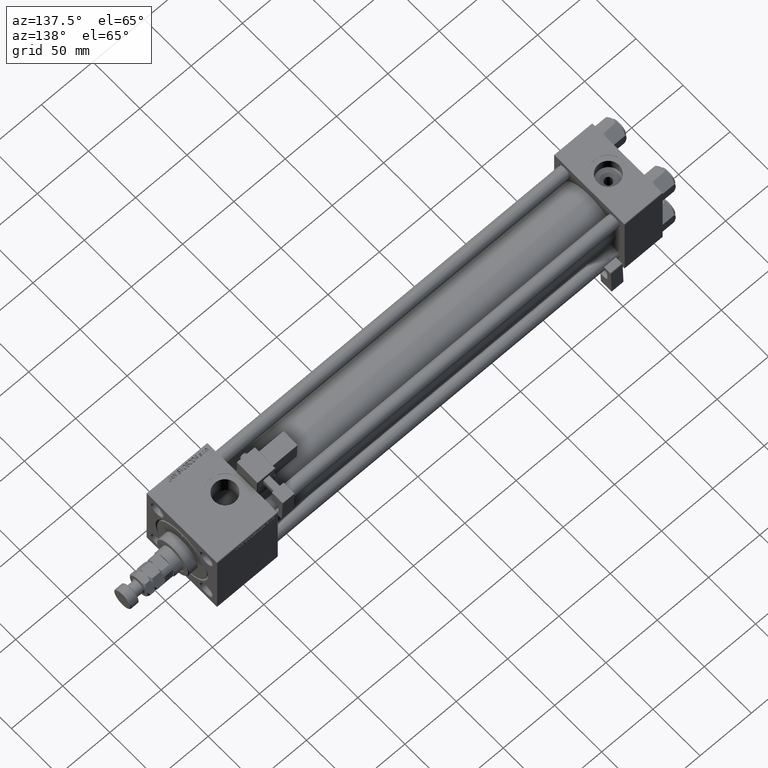
[diagram: clean part render]
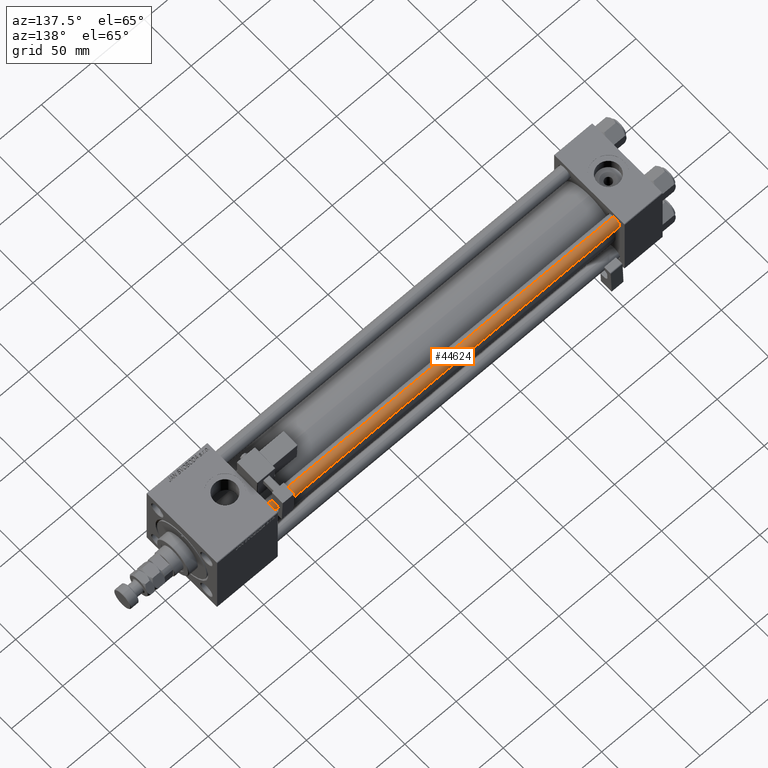
[diagram: same view with one face highlighted and labeled with its STEP entity id]
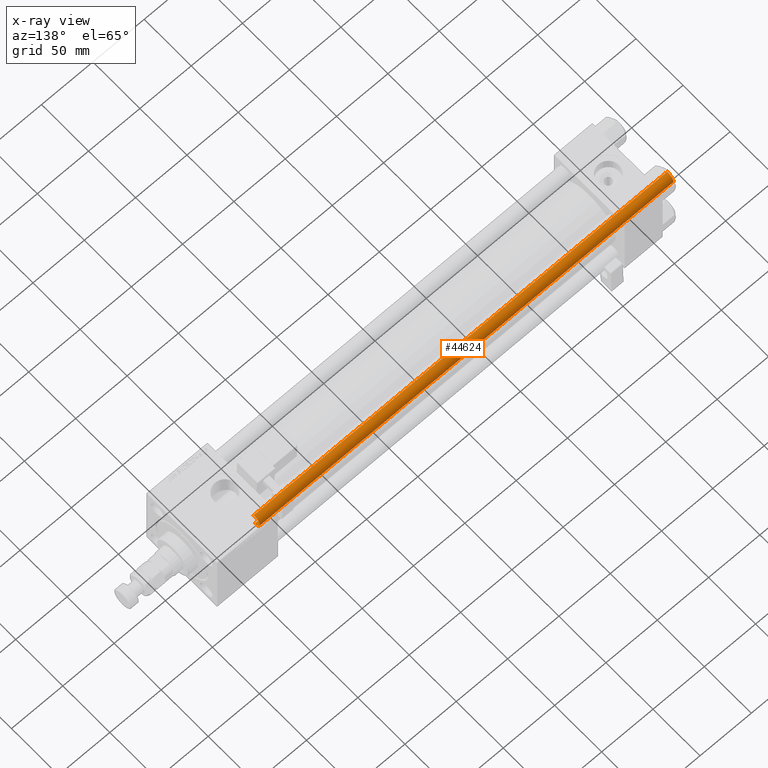
[diagram: x-ray of the same camera — body ghosted, the highlighted face saturated]
A machine part, auxiliary view. The second image highlights one B-rep face of the part: STEP entity #44624.
The next image is the same camera in x-ray: the body ghosted, the highlighted face saturated — about 0% of this face is hidden behind the body in this view.
In plain terms, the highlighted cylindrical surface (edge-blend (fillet) strip) has radius 6 mm, axis along (-1, 0, 0).
Its self-contained STEP definition (entity closure, byte-faithful):
#1400 = EDGE_LOOP ( 'NONE', ( #47393, #31350, #16068, #42090 ) ) ;
#1852 = CIRCLE ( 'NONE', #36883, 6.000000000000000888 ) ;
#1894 = DIRECTION ( 'NONE',  ( -0.000000000000000000, -0.000000000000000000, 1.000000000000000000 ) ) ;
#4474 = DIRECTION ( 'NONE',  ( -1.000000000000000000, 0.000000000000000000, 0.000000000000000000 ) ) ;
#4855 = DIRECTION ( 'NONE',  ( -0.000000000000000000, -0.000000000000000000, -1.000000000000000000 ) ) ;
#6539 = DIRECTION ( 'NONE',  ( 1.000000000000000000, 0.000000000000000000, 0.000000000000000000 ) ) ;
#6720 = DIRECTION ( 'NONE',  ( -0.000000000000000000, -0.000000000000000000, -1.000000000000000000 ) ) ;
#6978 = EDGE_CURVE ( 'NONE', #18131, #23516, #1852, .T. ) ;
#7506 = CARTESIAN_POINT ( 'NONE',  ( 0.000000000000000000, 0.000000000000000000, 404.0000000000000000 ) ) ;
#9682 = CARTESIAN_POINT ( 'NONE',  ( 6.000000000000000888, 7.347880794884120722E-16, 403.5000000000000000 ) ) ;
#10113 = CARTESIAN_POINT ( 'NONE',  ( 0.000000000000000000, 0.000000000000000000, 0.5000000000000559552 ) ) ;
#11885 = CARTESIAN_POINT ( 'NONE',  ( 0.000000000000000000, 0.000000000000000000, 403.5000000000000000 ) ) ;
#15727 = FACE_OUTER_BOUND ( 'NONE', #1400, .T. ) ;
#16068 = ORIENTED_EDGE ( 'NONE', *, *, #24231, .T. ) ;
#18131 = VERTEX_POINT ( 'NONE', #32988 ) ;
#18156 = CIRCLE ( 'NONE', #52328, 6.000000000000000888 ) ;
#23516 = VERTEX_POINT ( 'NONE', #9682 ) ;
#24231 = EDGE_CURVE ( 'NONE', #49496, #30312, #18156, .T. ) ;
#30312 = VERTEX_POINT ( 'NONE', #36546 ) ;
#31350 = ORIENTED_EDGE ( 'NONE', *, *, #50375, .T. ) ;
#32451 = DIRECTION ( 'NONE',  ( 1.000000000000000000, 0.000000000000000000, 0.000000000000000000 ) ) ;
#32453 = CYLINDRICAL_SURFACE ( 'NONE', #36835, 6.000000000000000888 ) ;
#32988 = CARTESIAN_POINT ( 'NONE',  ( -6.000000000000000888, 0.000000000000000000, 403.5000000000000000 ) ) ;
#33807 = DIRECTION ( 'NONE',  ( -0.000000000000000000, -0.000000000000000000, -1.000000000000000000 ) ) ;
#36546 = CARTESIAN_POINT ( 'NONE',  ( -6.000000000000000888, 0.000000000000000000, 0.5000000000000559552 ) ) ;
#36835 = AXIS2_PLACEMENT_3D ( 'NONE', #7506, #33807, #4474 ) ;
#36883 = AXIS2_PLACEMENT_3D ( 'NONE', #11885, #45597, #32451 ) ;
#37149 = LINE ( 'NONE', #53885, #51038 ) ;
#38626 = CARTESIAN_POINT ( 'NONE',  ( 6.000000000000000888, 7.347880794884120722E-16, 0.5000000000000559552 ) ) ;
#40716 = EDGE_CURVE ( 'NONE', #18131, #30312, #42402, .T. ) ;
#42090 = ORIENTED_EDGE ( 'NONE', *, *, #40716, .F. ) ;
#42402 = LINE ( 'NONE', #42668, #47310 ) ;
#42668 = CARTESIAN_POINT ( 'NONE',  ( -6.000000000000000888, 0.000000000000000000, 404.0000000000000000 ) ) ;
#44624 = ADVANCED_FACE ( 'NONE', ( #15727 ), #32453, .T. ) ;
#45597 = DIRECTION ( 'NONE',  ( 0.000000000000000000, 0.000000000000000000, -1.000000000000000000 ) ) ;
#47310 = VECTOR ( 'NONE', #4855, 1000.000000000000000 ) ;
#47393 = ORIENTED_EDGE ( 'NONE', *, *, #6978, .T. ) ;
#49496 = VERTEX_POINT ( 'NONE', #38626 ) ;
#50375 = EDGE_CURVE ( 'NONE', #23516, #49496, #37149, .T. ) ;
#51038 = VECTOR ( 'NONE', #6720, 1000.000000000000000 ) ;
#52328 = AXIS2_PLACEMENT_3D ( 'NONE', #10113, #1894, #6539 ) ;
#53885 = CARTESIAN_POINT ( 'NONE',  ( 6.000000000000000888, 7.347880794884120722E-16, 404.0000000000000000 ) ) ;